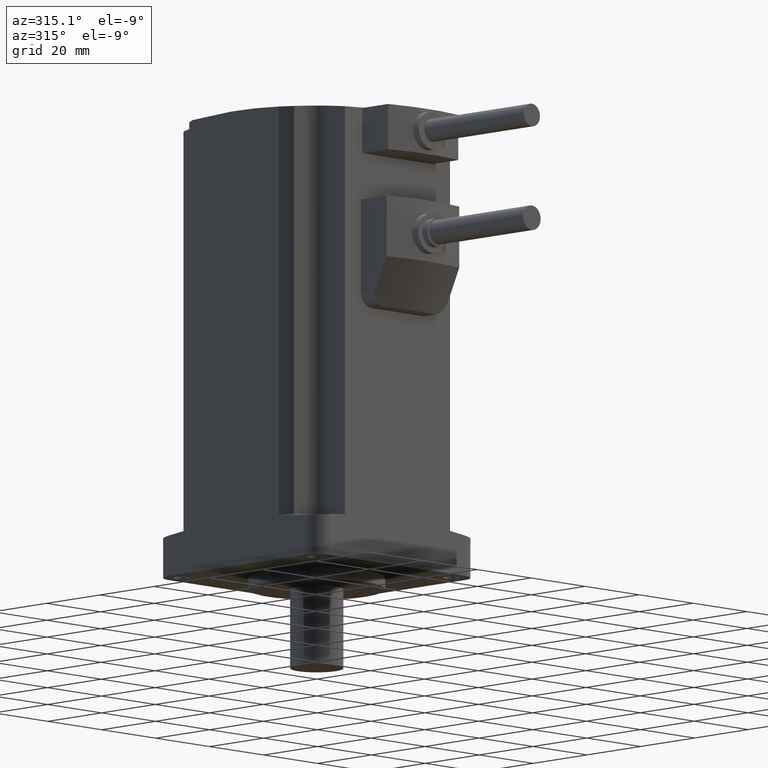
[diagram: clean part render]
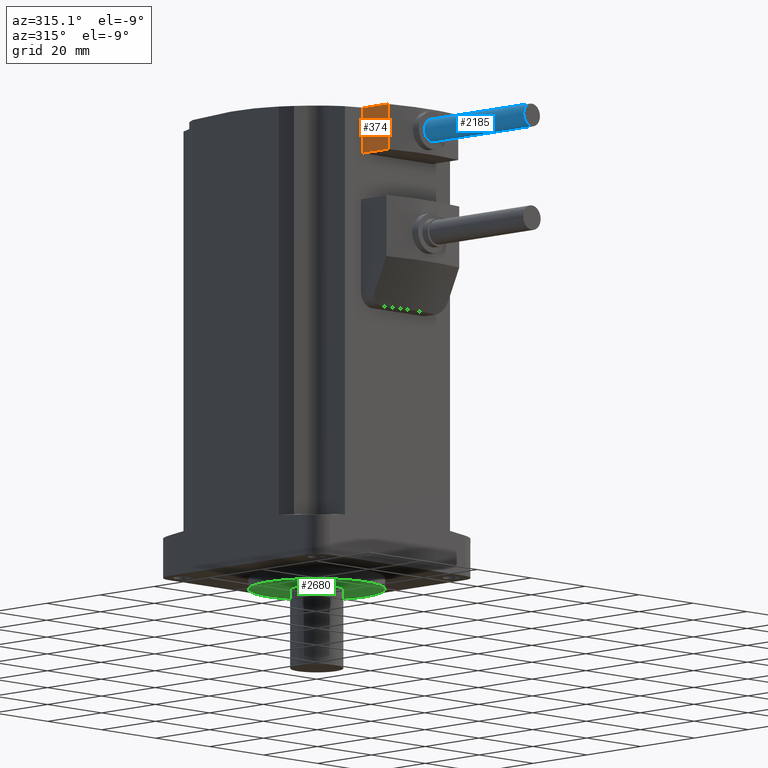
[diagram: same view with three faces highlighted in distinct colors, each labeled with its STEP entity id]
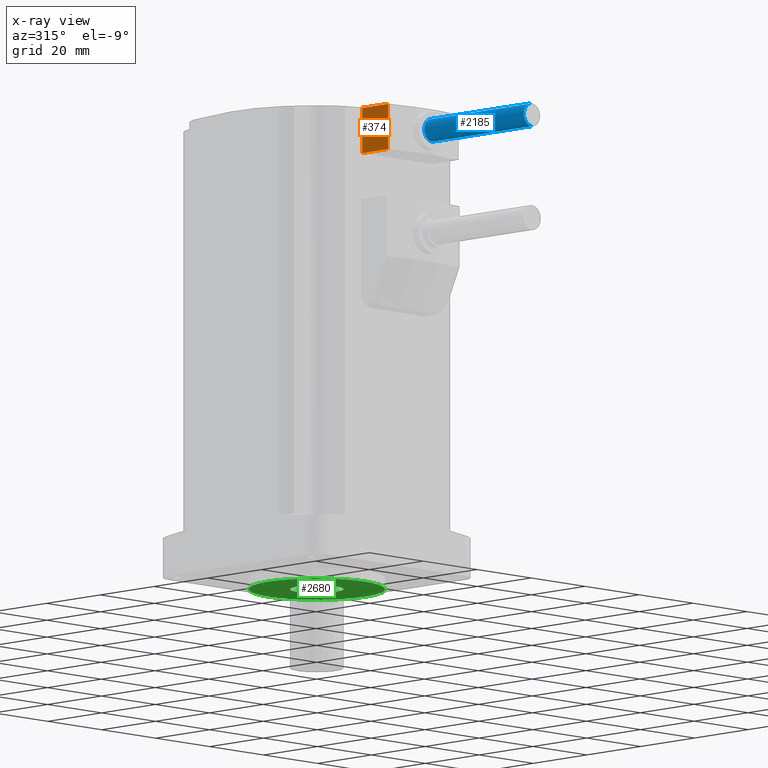
[diagram: x-ray of the same camera — body ghosted, the three highlighted faces saturated]
A machine part, auxiliary view with three faces highlighted in distinct colors.
The next image is the same camera in x-ray (body ghosted, the three faces saturated) — at least one of them is partly hidden behind the body in this view.
Their STEP definitions:

[orange] entity #374 — the highlighted planar face has unit normal (-1, 0, 0).
#55 = DIRECTION ( 'NONE',  ( -1.000000000000000000, 0.0000000000000000000, 0.0000000000000000000 ) ) ;
#334 = LINE ( 'NONE', #3825, #1729 ) ;
#343 = LINE ( 'NONE', #3388, #2458 ) ;
#374 = ADVANCED_FACE ( 'NONE', ( #924 ), #2811, .T. ) ;
#687 = CARTESIAN_POINT ( 'NONE',  ( -12.99999999999998401, -39.57473858242988030, 108.0999999999999943 ) ) ;
#876 = LINE ( 'NONE', #4691, #2052 ) ;
#894 = ORIENTED_EDGE ( 'NONE', *, *, #3185, .F. ) ;
#924 = FACE_OUTER_BOUND ( 'NONE', #1214, .T. ) ;
#1060 = EDGE_CURVE ( 'NONE', #1462, #3782, #343, .T. ) ;
#1214 = EDGE_LOOP ( 'NONE', ( #4410, #3684, #894, #4014 ) ) ;
#1462 = VERTEX_POINT ( 'NONE', #4099 ) ;
#1729 = VECTOR ( 'NONE', #3750, 1000.000000000000000 ) ;
#1937 = VERTEX_POINT ( 'NONE', #2189 ) ;
#2052 = VECTOR ( 'NONE', #4302, 1000.000000000000000 ) ;
#2189 = CARTESIAN_POINT ( 'NONE',  ( -12.99999999999998401, -39.57473858242988030, 108.0999999999999943 ) ) ;
#2225 = DIRECTION ( 'NONE',  ( 0.0000000000000000000, 0.0000000000000000000, 1.000000000000000000 ) ) ;
#2272 = DIRECTION ( 'NONE',  ( 0.0000000000000000000, 1.000000000000000000, -0.0000000000000000000 ) ) ;
#2458 = VECTOR ( 'NONE', #2272, 1000.000000000000000 ) ;
#2811 = PLANE ( 'NONE',  #3456 ) ;
#2884 = VECTOR ( 'NONE', #2225, 1000.000000000000000 ) ;
#3185 = EDGE_CURVE ( 'NONE', #1937, #3357, #876, .T. ) ;
#3357 = VERTEX_POINT ( 'NONE', #4426 ) ;
#3388 = CARTESIAN_POINT ( 'NONE',  ( -12.99999999999998401, -41.00000000000000711, 120.0999999999999801 ) ) ;
#3404 = EDGE_CURVE ( 'NONE', #3782, #3357, #334, .T. ) ;
#3456 = AXIS2_PLACEMENT_3D ( 'NONE', #4692, #55, #4792 ) ;
#3684 = ORIENTED_EDGE ( 'NONE', *, *, #3404, .T. ) ;
#3750 = DIRECTION ( 'NONE',  ( -0.0000000000000000000, 0.0000000000000000000, -1.000000000000000000 ) ) ;
#3782 = VERTEX_POINT ( 'NONE', #4626 ) ;
#3825 = CARTESIAN_POINT ( 'NONE',  ( -12.99999999999998401, -29.99999999999999645, 12.99799999999999578 ) ) ;
#4014 = ORIENTED_EDGE ( 'NONE', *, *, #4589, .T. ) ;
#4099 = CARTESIAN_POINT ( 'NONE',  ( -12.99999999999998401, -39.57473858242988030, 120.0999999999999801 ) ) ;
#4147 = LINE ( 'NONE', #687, #2884 ) ;
#4302 = DIRECTION ( 'NONE',  ( 0.0000000000000000000, 1.000000000000000000, 0.0000000000000000000 ) ) ;
#4410 = ORIENTED_EDGE ( 'NONE', *, *, #1060, .T. ) ;
#4426 = CARTESIAN_POINT ( 'NONE',  ( -12.99999999999998401, -30.00000000000000000, 108.0999999999999943 ) ) ;
#4589 = EDGE_CURVE ( 'NONE', #1937, #1462, #4147, .T. ) ;
#4626 = CARTESIAN_POINT ( 'NONE',  ( -12.99999999999998401, -30.00000000000000000, 120.0999999999999801 ) ) ;
#4691 = CARTESIAN_POINT ( 'NONE',  ( -12.99999999999998401, -41.00000000000000711, 108.0999999999999943 ) ) ;
#4692 = CARTESIAN_POINT ( 'NONE',  ( -12.99999999999998401, -41.00000000000000711, 108.0999999999999943 ) ) ;
#4792 = DIRECTION ( 'NONE',  ( 0.0000000000000000000, 0.0000000000000000000, 1.000000000000000000 ) ) ;

[blue] entity #2185 — the highlighted cylindrical surface (edge-blend (fillet) strip) has radius 3 mm, axis along (0, 1, 0).
#244 = DIRECTION ( 'NONE',  ( 0.0000000000000000000, 0.0000000000000000000, 1.000000000000000000 ) ) ;
#303 = VECTOR ( 'NONE', #4209, 1000.000000000000000 ) ;
#390 = CARTESIAN_POINT ( 'NONE',  ( 0.0000000000000000000, -43.00000000000003553, 117.0999999999999801 ) ) ;
#504 = CYLINDRICAL_SURFACE ( 'NONE', #2616, 3.000000000000002665 ) ;
#594 = CIRCLE ( 'NONE', #2041, 3.000000000000002665 ) ;
#657 = ORIENTED_EDGE ( 'NONE', *, *, #4339, .T. ) ;
#759 = VERTEX_POINT ( 'NONE', #4254 ) ;
#767 = EDGE_CURVE ( 'NONE', #2730, #2450, #806, .T. ) ;
#806 = LINE ( 'NONE', #2956, #1332 ) ;
#922 = CIRCLE ( 'NONE', #3579, 3.000000000000002665 ) ;
#952 = DIRECTION ( 'NONE',  ( 0.0000000000000000000, 0.0000000000000000000, 1.000000000000000000 ) ) ;
#1227 = CARTESIAN_POINT ( 'NONE',  ( 3.673940397442062826E-16, -43.00000000000003553, 111.0999999999999801 ) ) ;
#1230 = EDGE_CURVE ( 'NONE', #3116, #2450, #922, .T. ) ;
#1295 = FACE_OUTER_BOUND ( 'NONE', #3091, .T. ) ;
#1308 = DIRECTION ( 'NONE',  ( 0.0000000000000000000, 0.0000000000000000000, 1.000000000000000000 ) ) ;
#1332 = VECTOR ( 'NONE', #3153, 1000.000000000000000 ) ;
#1496 = EDGE_CURVE ( 'NONE', #2730, #759, #594, .T. ) ;
#1704 = ORIENTED_EDGE ( 'NONE', *, *, #767, .F. ) ;
#1889 = LINE ( 'NONE', #4594, #303 ) ;
#2041 = AXIS2_PLACEMENT_3D ( 'NONE', #3712, #3312, #244 ) ;
#2065 = CARTESIAN_POINT ( 'NONE',  ( 0.0000000000000000000, -43.00000000000003553, 114.0999999999999801 ) ) ;
#2185 = ADVANCED_FACE ( 'NONE', ( #1295 ), #504, .T. ) ;
#2450 = VERTEX_POINT ( 'NONE', #1227 ) ;
#2616 = AXIS2_PLACEMENT_3D ( 'NONE', #4424, #4369, #952 ) ;
#2691 = ORIENTED_EDGE ( 'NONE', *, *, #1230, .T. ) ;
#2730 = VERTEX_POINT ( 'NONE', #3084 ) ;
#2956 = CARTESIAN_POINT ( 'NONE',  ( 3.673940397442062826E-16, -386.4999999999999432, 111.0999999999999801 ) ) ;
#3084 = CARTESIAN_POINT ( 'NONE',  ( 3.673940397442062826E-16, -80.00000000000001421, 111.0999999999999801 ) ) ;
#3091 = EDGE_LOOP ( 'NONE', ( #1704, #4463, #657, #2691 ) ) ;
#3116 = VERTEX_POINT ( 'NONE', #390 ) ;
#3153 = DIRECTION ( 'NONE',  ( 0.0000000000000000000, 1.000000000000000000, 0.0000000000000000000 ) ) ;
#3312 = DIRECTION ( 'NONE',  ( 0.0000000000000000000, 1.000000000000000000, 0.0000000000000000000 ) ) ;
#3579 = AXIS2_PLACEMENT_3D ( 'NONE', #2065, #3603, #1308 ) ;
#3603 = DIRECTION ( 'NONE',  ( -0.0000000000000000000, -1.000000000000000000, -0.0000000000000000000 ) ) ;
#3712 = CARTESIAN_POINT ( 'NONE',  ( 0.0000000000000000000, -80.00000000000001421, 114.0999999999999801 ) ) ;
#4209 = DIRECTION ( 'NONE',  ( 0.0000000000000000000, 1.000000000000000000, 0.0000000000000000000 ) ) ;
#4254 = CARTESIAN_POINT ( 'NONE',  ( 0.0000000000000000000, -80.00000000000001421, 117.0999999999999801 ) ) ;
#4339 = EDGE_CURVE ( 'NONE', #759, #3116, #1889, .T. ) ;
#4369 = DIRECTION ( 'NONE',  ( 0.0000000000000000000, 1.000000000000000000, 0.0000000000000000000 ) ) ;
#4424 = CARTESIAN_POINT ( 'NONE',  ( 0.0000000000000000000, -386.4999999999999432, 114.0999999999999801 ) ) ;
#4463 = ORIENTED_EDGE ( 'NONE', *, *, #1496, .T. ) ;
#4594 = CARTESIAN_POINT ( 'NONE',  ( 0.0000000000000000000, -386.4999999999999432, 117.0999999999999801 ) ) ;

[green] entity #2680 — the highlighted planar face has unit normal (0, 0, -1).
#216 = CIRCLE ( 'NONE', #1526, 7.000000000000000000 ) ;
#243 = CARTESIAN_POINT ( 'NONE',  ( 0.0000000000000000000, 0.0000000000000000000, -3.000000000000000000 ) ) ;
#302 = DIRECTION ( 'NONE',  ( 0.0000000000000000000, 0.0000000000000000000, -1.000000000000000000 ) ) ;
#911 = CARTESIAN_POINT ( 'NONE',  ( 18.00000000000000355, 2.204364238465235822E-15, -3.000000000000000000 ) ) ;
#996 = ORIENTED_EDGE ( 'NONE', *, *, #4360, .F. ) ;
#1253 = CIRCLE ( 'NONE', #4806, 18.00000000000000355 ) ;
#1275 = VERTEX_POINT ( 'NONE', #1368 ) ;
#1349 = DIRECTION ( 'NONE',  ( 0.0000000000000000000, 0.0000000000000000000, 1.000000000000000000 ) ) ;
#1368 = CARTESIAN_POINT ( 'NONE',  ( -7.000000000000000000, 0.0000000000000000000, -3.000000000000000000 ) ) ;
#1526 = AXIS2_PLACEMENT_3D ( 'NONE', #4547, #3661, #4121 ) ;
#1626 = FACE_BOUND ( 'NONE', #2297, .T. ) ;
#1788 = VERTEX_POINT ( 'NONE', #3201 ) ;
#1802 = EDGE_CURVE ( 'NONE', #3274, #1275, #3259, .T. ) ;
#2231 = CARTESIAN_POINT ( 'NONE',  ( 0.0000000000000000000, 0.0000000000000000000, -3.000000000000000000 ) ) ;
#2297 = EDGE_LOOP ( 'NONE', ( #4060, #3480 ) ) ;
#2680 = ADVANCED_FACE ( 'NONE', ( #3545, #1626 ), #2776, .T. ) ;
#2759 = ORIENTED_EDGE ( 'NONE', *, *, #3576, .F. ) ;
#2776 = PLANE ( 'NONE',  #3269 ) ;
#2843 = DIRECTION ( 'NONE',  ( -1.000000000000000000, 0.0000000000000000000, 0.0000000000000000000 ) ) ;
#3102 = AXIS2_PLACEMENT_3D ( 'NONE', #4038, #4459, #3681 ) ;
#3201 = CARTESIAN_POINT ( 'NONE',  ( -18.00000000000000355, 0.0000000000000000000, -3.000000000000000000 ) ) ;
#3259 = CIRCLE ( 'NONE', #3102, 7.000000000000000000 ) ;
#3269 = AXIS2_PLACEMENT_3D ( 'NONE', #2231, #302, #4841 ) ;
#3274 = VERTEX_POINT ( 'NONE', #3347 ) ;
#3347 = CARTESIAN_POINT ( 'NONE',  ( 7.000000000000000000, 8.572527594031473190E-16, -3.000000000000000000 ) ) ;
#3480 = ORIENTED_EDGE ( 'NONE', *, *, #1802, .T. ) ;
#3545 = FACE_OUTER_BOUND ( 'NONE', #4153, .T. ) ;
#3576 = EDGE_CURVE ( 'NONE', #1788, #4011, #1253, .T. ) ;
#3661 = DIRECTION ( 'NONE',  ( 0.0000000000000000000, 0.0000000000000000000, 1.000000000000000000 ) ) ;
#3681 = DIRECTION ( 'NONE',  ( -1.000000000000000000, 0.0000000000000000000, 0.0000000000000000000 ) ) ;
#4011 = VERTEX_POINT ( 'NONE', #911 ) ;
#4025 = CARTESIAN_POINT ( 'NONE',  ( 0.0000000000000000000, 0.0000000000000000000, -3.000000000000000000 ) ) ;
#4038 = CARTESIAN_POINT ( 'NONE',  ( 0.0000000000000000000, 0.0000000000000000000, -3.000000000000000000 ) ) ;
#4060 = ORIENTED_EDGE ( 'NONE', *, *, #4205, .T. ) ;
#4121 = DIRECTION ( 'NONE',  ( -1.000000000000000000, 0.0000000000000000000, 0.0000000000000000000 ) ) ;
#4153 = EDGE_LOOP ( 'NONE', ( #2759, #996 ) ) ;
#4205 = EDGE_CURVE ( 'NONE', #1275, #3274, #216, .T. ) ;
#4360 = EDGE_CURVE ( 'NONE', #4011, #1788, #4587, .T. ) ;
#4447 = DIRECTION ( 'NONE',  ( -1.000000000000000000, 0.0000000000000000000, 0.0000000000000000000 ) ) ;
#4459 = DIRECTION ( 'NONE',  ( 0.0000000000000000000, 0.0000000000000000000, 1.000000000000000000 ) ) ;
#4464 = DIRECTION ( 'NONE',  ( 0.0000000000000000000, 0.0000000000000000000, 1.000000000000000000 ) ) ;
#4547 = CARTESIAN_POINT ( 'NONE',  ( 0.0000000000000000000, 0.0000000000000000000, -3.000000000000000000 ) ) ;
#4587 = CIRCLE ( 'NONE', #4750, 18.00000000000000355 ) ;
#4750 = AXIS2_PLACEMENT_3D ( 'NONE', #243, #4464, #2843 ) ;
#4806 = AXIS2_PLACEMENT_3D ( 'NONE', #4025, #1349, #4447 ) ;
#4841 = DIRECTION ( 'NONE',  ( -1.000000000000000000, 0.0000000000000000000, -0.0000000000000000000 ) ) ;